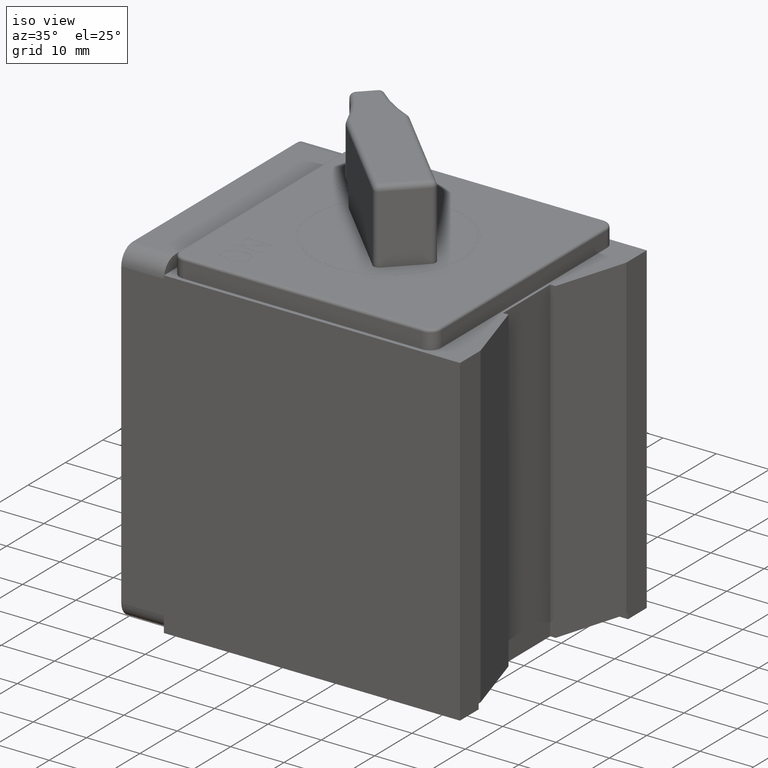
[diagram: clean part render]
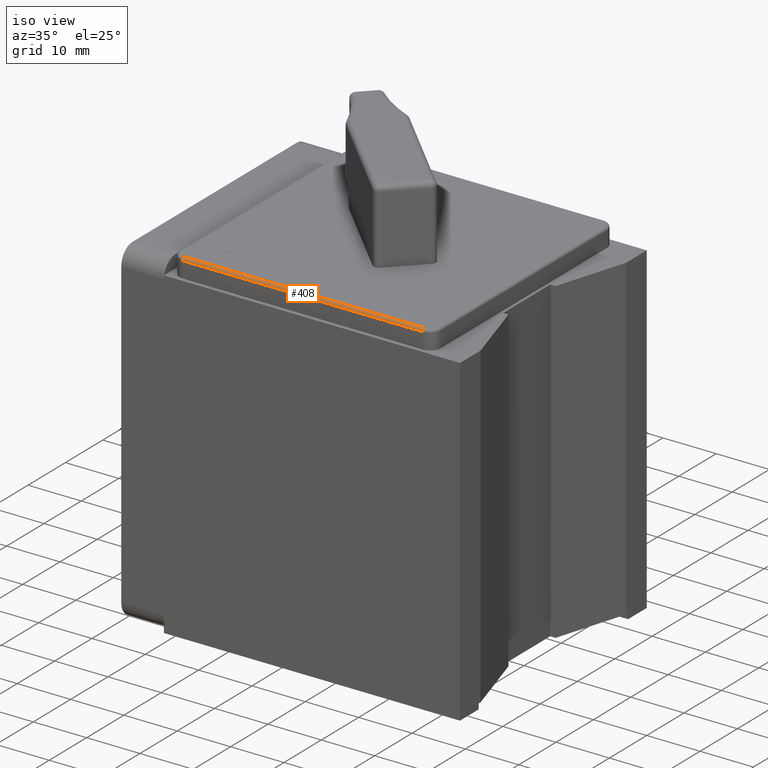
[diagram: same view with one face highlighted and labeled with its STEP entity id]
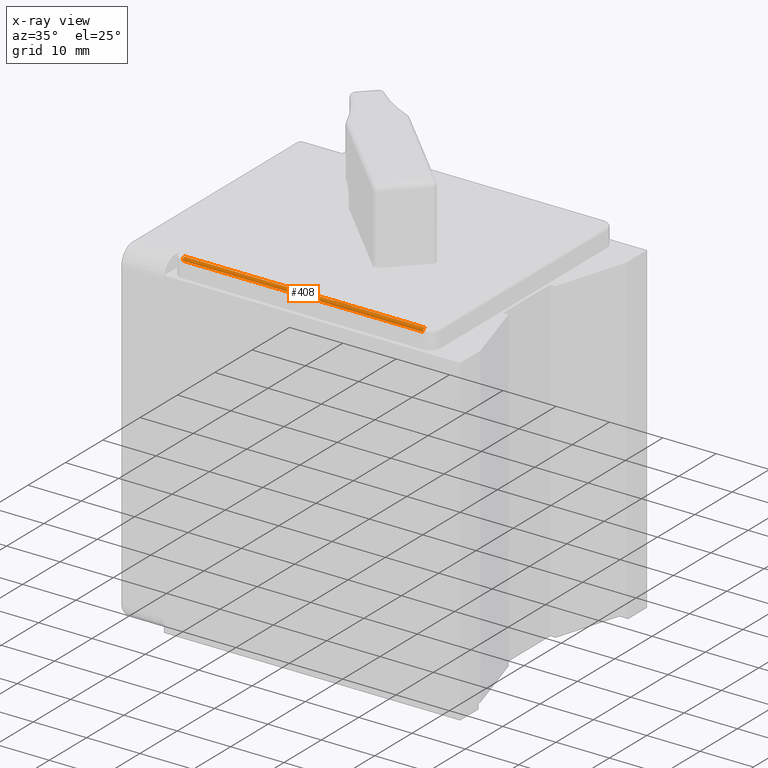
[diagram: x-ray of the same camera — body ghosted, the highlighted face saturated]
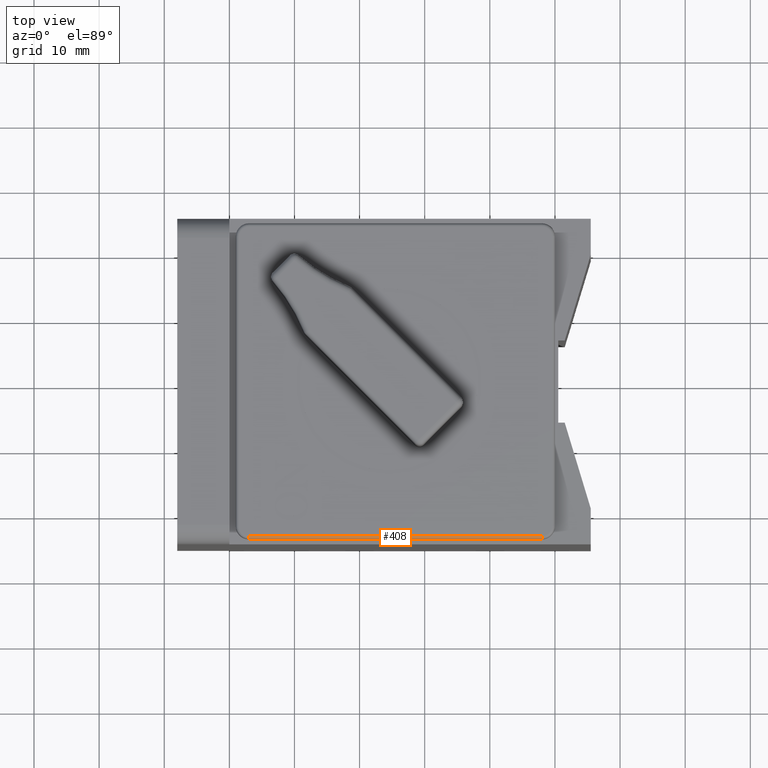
[diagram: same view with one face highlighted and labeled with its STEP entity id]
A machine part, iso view. The second image highlights one B-rep face of the part: STEP entity #408.
The next image is the same camera in x-ray: the body ghosted, the highlighted face saturated — about 0% of this face is hidden behind the body in this view.
A second angle (top view) of the same face is appended — the face is thin or edge-on in the first view.
In plain terms, the highlighted cylindrical surface (edge-blend (fillet) strip) has radius 0.5 mm, axis along (-1, -0, 0).
Its self-contained STEP definition (entity closure, byte-faithful):
#408 = ADVANCED_FACE ( 'NONE', ( #3679 ), #751, .T. ) ;
#701 = CARTESIAN_POINT ( 'NONE',  ( 47.99999999999999300, -23.74999999999998600, 32.60000000000000100 ) ) ;
#751 = CYLINDRICAL_SURFACE ( 'NONE', #5784, 0.5000000000000004400 ) ;
#884 = EDGE_CURVE ( 'NONE', #11629, #11616, #12053, .T. ) ;
#1112 = AXIS2_PLACEMENT_3D ( 'NONE', #6894, #9780, #10762 ) ;
#1359 = ORIENTED_EDGE ( 'NONE', *, *, #884, .T. ) ;
#1483 = EDGE_CURVE ( 'NONE', #8937, #10746, #11890, .T. ) ;
#1820 = CARTESIAN_POINT ( 'NONE',  ( 3.000000000000002700, -23.74999999999999300, 32.60000000000000100 ) ) ;
#1942 = EDGE_LOOP ( 'NONE', ( #1359, #8447, #4913, #4950 ) ) ;
#3367 = VECTOR ( 'NONE', #8564, 1000.000000000000000 ) ;
#3460 = CARTESIAN_POINT ( 'NONE',  ( 3.000000000000002700, -24.24999999999998900, 32.10000000000000100 ) ) ;
#3659 = CARTESIAN_POINT ( 'NONE',  ( 3.000000000000002700, -23.74999999999999300, 32.10000000000000100 ) ) ;
#3679 = FACE_OUTER_BOUND ( 'NONE', #1942, .T. ) ;
#3700 = DIRECTION ( 'NONE',  ( 0.0000000000000000000, 0.0000000000000000000, -1.000000000000000000 ) ) ;
#4251 = DIRECTION ( 'NONE',  ( 1.000000000000000000, 7.709882115452479400E-017, 0.0000000000000000000 ) ) ;
#4524 = DIRECTION ( 'NONE',  ( 0.0000000000000000000, -1.000000000000000000, 0.0000000000000000000 ) ) ;
#4628 = AXIS2_PLACEMENT_3D ( 'NONE', #3659, #10502, #3700 ) ;
#4913 = ORIENTED_EDGE ( 'NONE', *, *, #1483, .T. ) ;
#4950 = ORIENTED_EDGE ( 'NONE', *, *, #7048, .F. ) ;
#5784 = AXIS2_PLACEMENT_3D ( 'NONE', #8386, #11275, #4524 ) ;
#5910 = CARTESIAN_POINT ( 'NONE',  ( 47.99999999999999300, -23.74999999999998600, 32.60000000000000100 ) ) ;
#5988 = LINE ( 'NONE', #12585, #3367 ) ;
#6159 = CARTESIAN_POINT ( 'NONE',  ( 47.99999999999999300, -24.24999999999998600, 32.10000000000000100 ) ) ;
#6291 = LINE ( 'NONE', #5910, #10099 ) ;
#6894 = CARTESIAN_POINT ( 'NONE',  ( 47.99999999999999300, -23.74999999999998600, 32.10000000000000100 ) ) ;
#7048 = EDGE_CURVE ( 'NONE', #11629, #10746, #6291, .T. ) ;
#8386 = CARTESIAN_POINT ( 'NONE',  ( 47.99999999999999300, -23.74999999999998600, 32.10000000000000100 ) ) ;
#8447 = ORIENTED_EDGE ( 'NONE', *, *, #8675, .F. ) ;
#8564 = DIRECTION ( 'NONE',  ( -1.000000000000000000, -7.709882115452479400E-017, -0.0000000000000000000 ) ) ;
#8675 = EDGE_CURVE ( 'NONE', #8937, #11616, #5988, .T. ) ;
#8937 = VERTEX_POINT ( 'NONE', #6159 ) ;
#9780 = DIRECTION ( 'NONE',  ( -1.000000000000000000, 0.0000000000000000000, 0.0000000000000000000 ) ) ;
#10099 = VECTOR ( 'NONE', #4251, 1000.000000000000000 ) ;
#10502 = DIRECTION ( 'NONE',  ( 1.000000000000000000, 0.0000000000000000000, 0.0000000000000000000 ) ) ;
#10746 = VERTEX_POINT ( 'NONE', #701 ) ;
#10762 = DIRECTION ( 'NONE',  ( 0.0000000000000000000, 0.0000000000000000000, 1.000000000000000000 ) ) ;
#11275 = DIRECTION ( 'NONE',  ( -1.000000000000000000, -7.709882115452479400E-017, 0.0000000000000000000 ) ) ;
#11616 = VERTEX_POINT ( 'NONE', #3460 ) ;
#11629 = VERTEX_POINT ( 'NONE', #1820 ) ;
#11890 = CIRCLE ( 'NONE', #1112, 0.5000000000000004400 ) ;
#12053 = CIRCLE ( 'NONE', #4628, 0.5000000000000004400 ) ;
#12585 = CARTESIAN_POINT ( 'NONE',  ( 3.000000000000002700, -24.24999999999998900, 32.10000000000000100 ) ) ;